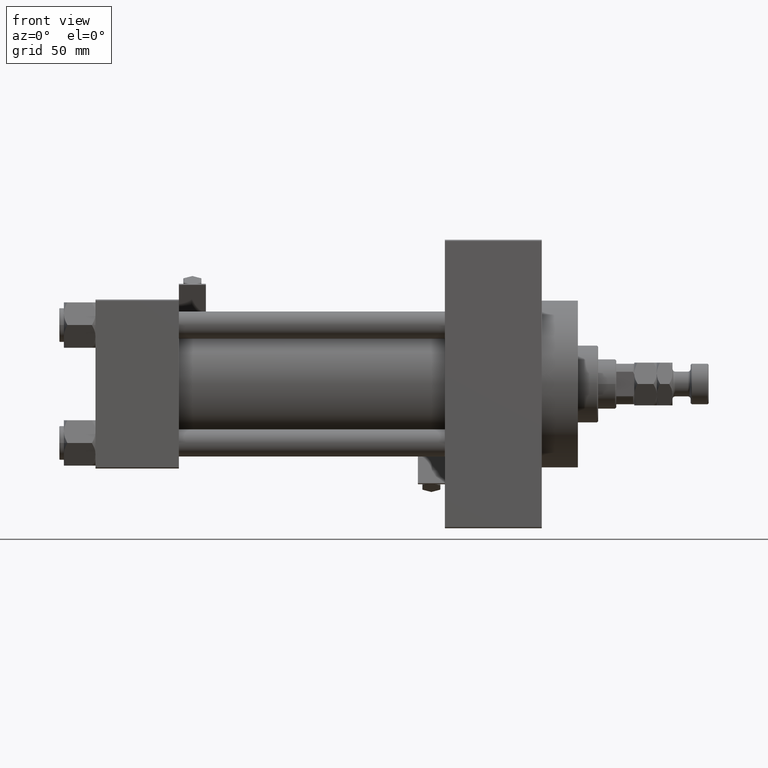
[diagram: clean part render]
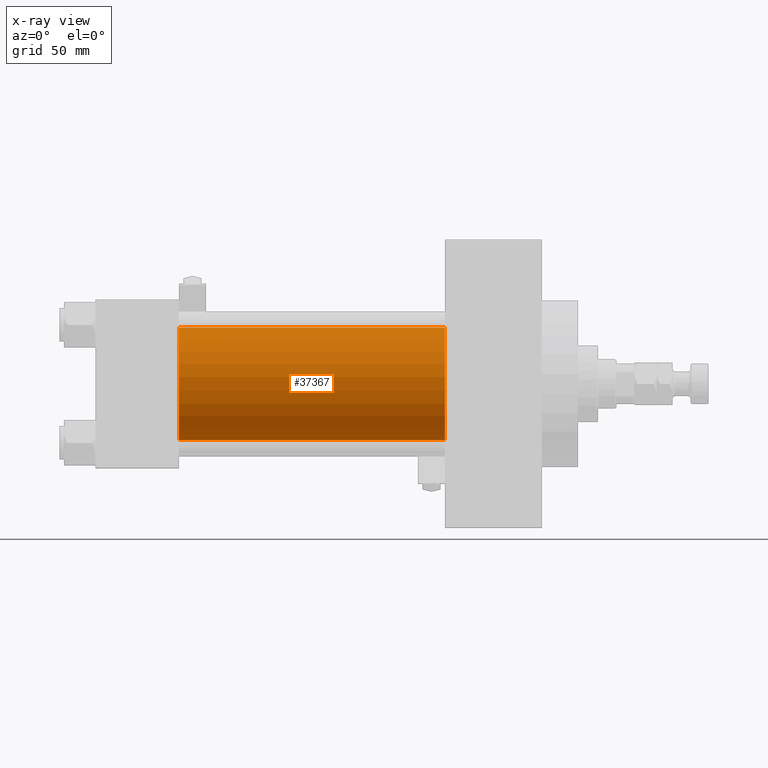
[diagram: x-ray — body ghosted, one internal face saturated and labeled with its STEP entity id]
A machine part, front view, then the same camera in x-ray: the body is ghosted and one INTERNAL B-rep face — a face not visible from any outside direction — is saturated and labeled: STEP entity #37367.
In plain terms, the highlighted cylindrical surface (partial cylindrical patch) has radius 25 mm, axis along (-1, -0, -0).
Its self-contained STEP definition (entity closure, byte-faithful):
#737 = DIRECTION ( 'NONE',  ( 1.000000000000000000, 0.000000000000000000, 0.000000000000000000 ) ) ;
#1254 = LINE ( 'NONE', #40860, #45830 ) ;
#2529 = DIRECTION ( 'NONE',  ( 0.000000000000000000, 0.000000000000000000, 1.000000000000000000 ) ) ;
#2783 = FACE_OUTER_BOUND ( 'NONE', #43828, .T. ) ;
#5818 = CARTESIAN_POINT ( 'NONE',  ( 155.0000000000000000, -2.602085213965210642E-15, 0.000000000000000000 ) ) ;
#5880 = AXIS2_PLACEMENT_3D ( 'NONE', #37447, #9464, #45026 ) ;
#9464 = DIRECTION ( 'NONE',  ( 1.000000000000000000, 0.000000000000000000, 0.000000000000000000 ) ) ;
#13208 = EDGE_CURVE ( 'NONE', #41961, #43254, #1254, .T. ) ;
#13752 = AXIS2_PLACEMENT_3D ( 'NONE', #5818, #40652, #2529 ) ;
#15753 = AXIS2_PLACEMENT_3D ( 'NONE', #20406, #737, #43622 ) ;
#15914 = CARTESIAN_POINT ( 'NONE',  ( 37.00000000000000000, 4.595317839031724996E-16, -25.00000000000000000 ) ) ;
#18606 = EDGE_CURVE ( 'NONE', #23943, #43254, #20597, .T. ) ;
#20406 = CARTESIAN_POINT ( 'NONE',  ( 37.00000000000000000, -2.602085213965210642E-15, 0.000000000000000000 ) ) ;
#20597 = CIRCLE ( 'NONE', #15753, 25.00000000000000000 ) ;
#20711 = DIRECTION ( 'NONE',  ( -1.000000000000000000, -0.000000000000000000, -0.000000000000000000 ) ) ;
#21210 = CARTESIAN_POINT ( 'NONE',  ( 155.0000000000000000, -2.602085213965210642E-15, 25.00000000000000000 ) ) ;
#21430 = EDGE_CURVE ( 'NONE', #46336, #23943, #35359, .T. ) ;
#22242 = CARTESIAN_POINT ( 'NONE',  ( 155.0000000000000000, -2.602085213965210642E-15, 25.00000000000000000 ) ) ;
#23569 = ORIENTED_EDGE ( 'NONE', *, *, #18606, .F. ) ;
#23943 = VERTEX_POINT ( 'NONE', #28860 ) ;
#24896 = ORIENTED_EDGE ( 'NONE', *, *, #21430, .F. ) ;
#28719 = ORIENTED_EDGE ( 'NONE', *, *, #13208, .T. ) ;
#28860 = CARTESIAN_POINT ( 'NONE',  ( 37.00000000000000000, -2.602085213965210642E-15, 25.00000000000000000 ) ) ;
#31427 = CARTESIAN_POINT ( 'NONE',  ( 155.0000000000000000, 4.595317839031724996E-16, -25.00000000000000000 ) ) ;
#31659 = CIRCLE ( 'NONE', #5880, 25.00000000000000000 ) ;
#33217 = ORIENTED_EDGE ( 'NONE', *, *, #42058, .T. ) ;
#35359 = LINE ( 'NONE', #21210, #35876 ) ;
#35876 = VECTOR ( 'NONE', #20711, 1000.000000000000000 ) ;
#36071 = DIRECTION ( 'NONE',  ( -1.000000000000000000, -0.000000000000000000, -0.000000000000000000 ) ) ;
#37367 = ADVANCED_FACE ( 'NONE', ( #2783 ), #49227, .F. ) ;
#37447 = CARTESIAN_POINT ( 'NONE',  ( 155.0000000000000000, -2.602085213965210642E-15, 0.000000000000000000 ) ) ;
#40652 = DIRECTION ( 'NONE',  ( -1.000000000000000000, -0.000000000000000000, -0.000000000000000000 ) ) ;
#40860 = CARTESIAN_POINT ( 'NONE',  ( 155.0000000000000000, 4.595317839031724996E-16, -25.00000000000000000 ) ) ;
#41961 = VERTEX_POINT ( 'NONE', #31427 ) ;
#42058 = EDGE_CURVE ( 'NONE', #46336, #41961, #31659, .T. ) ;
#43254 = VERTEX_POINT ( 'NONE', #15914 ) ;
#43622 = DIRECTION ( 'NONE',  ( 0.000000000000000000, 0.000000000000000000, -1.000000000000000000 ) ) ;
#43828 = EDGE_LOOP ( 'NONE', ( #33217, #28719, #23569, #24896 ) ) ;
#45026 = DIRECTION ( 'NONE',  ( 0.000000000000000000, 0.000000000000000000, -1.000000000000000000 ) ) ;
#45830 = VECTOR ( 'NONE', #36071, 1000.000000000000000 ) ;
#46336 = VERTEX_POINT ( 'NONE', #22242 ) ;
#49227 = CYLINDRICAL_SURFACE ( 'NONE', #13752, 25.00000000000000000 ) ;